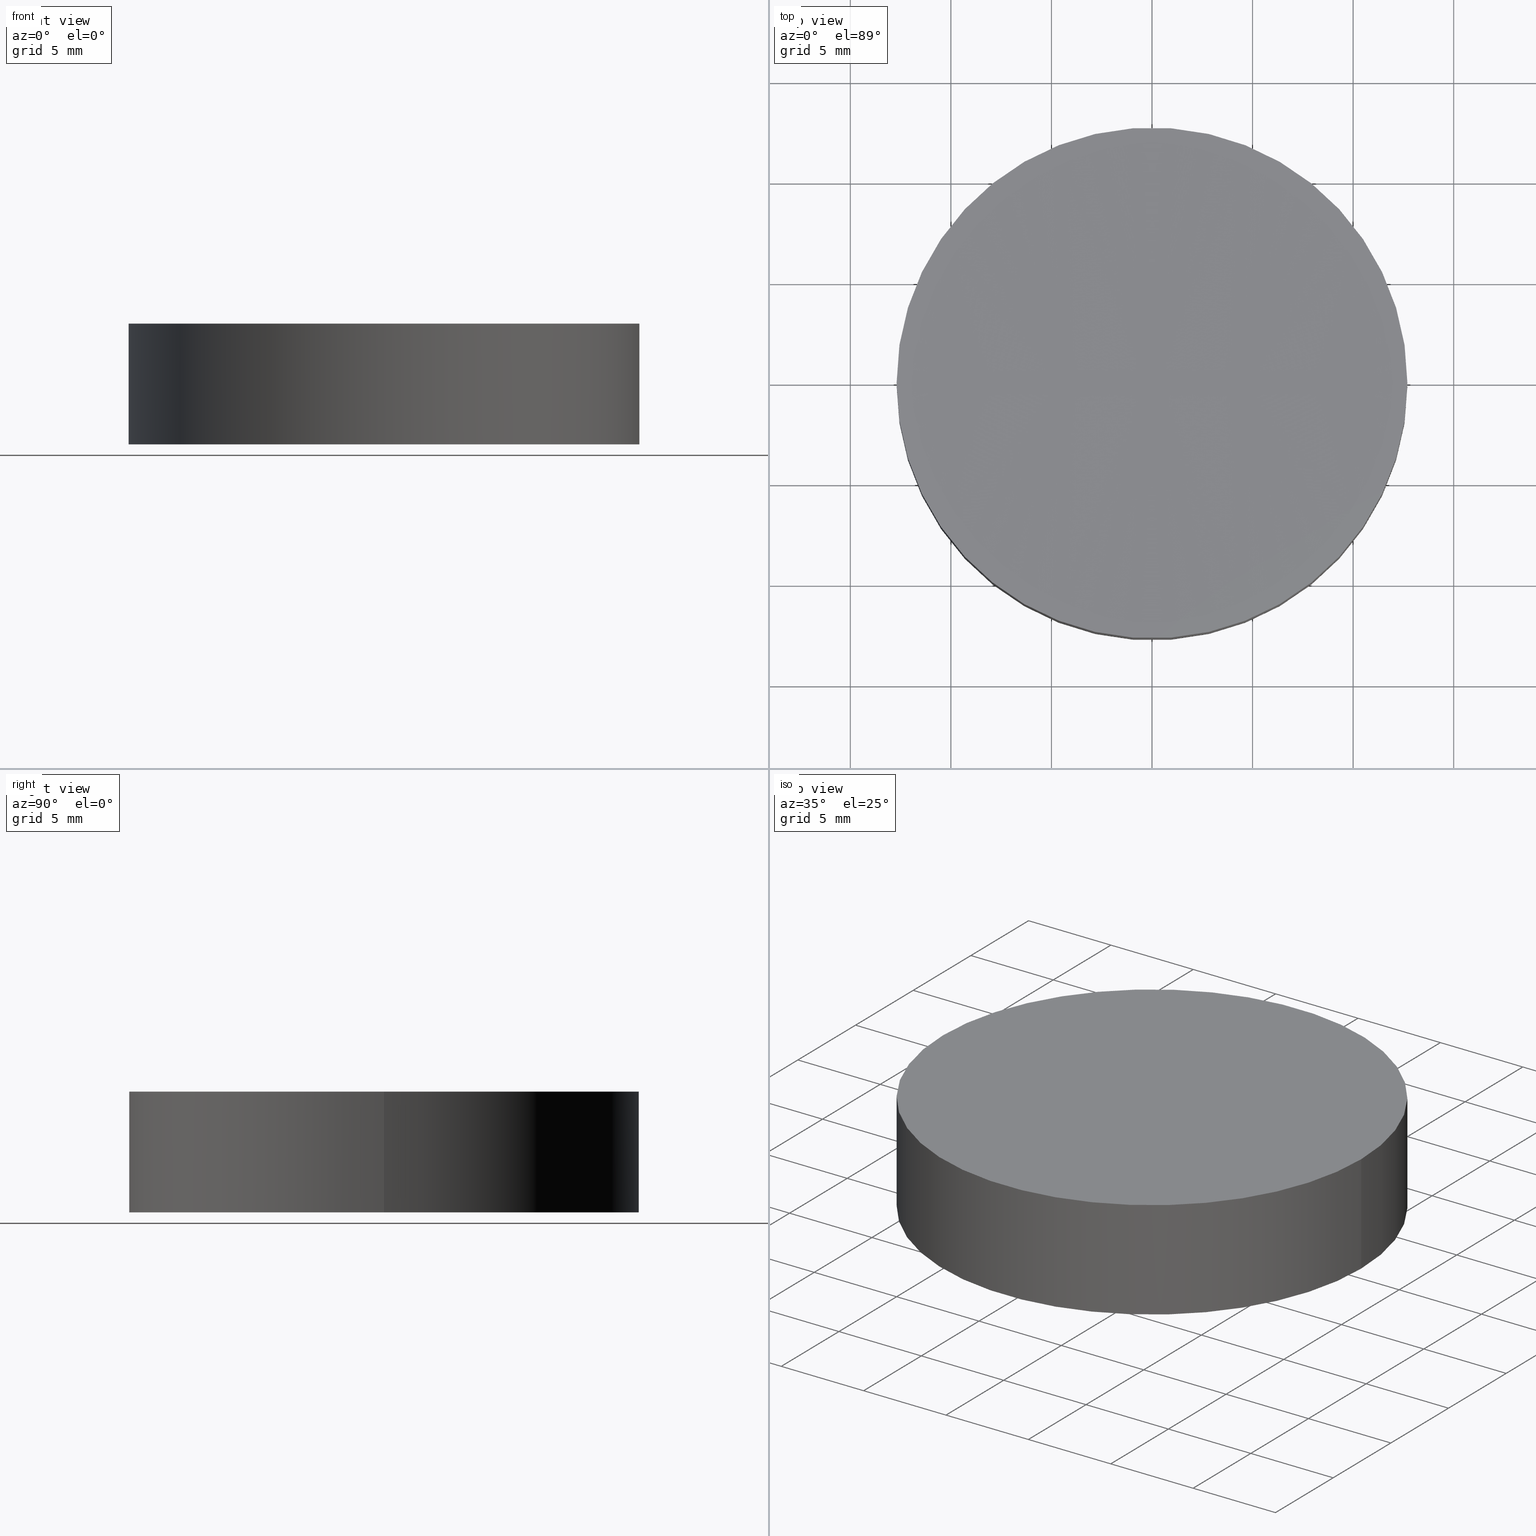
[diagram: canonical four-view strip — front | top / right | iso, engineering-drawing reading convention]
A machine part, canonical four-view strip (front | top / right | iso — engineering-drawing reading convention). The complete STEP part file that produces these views, byte-faithful:
ISO-10303-21;
HEADER;
FILE_DESCRIPTION (( 'STEP AP203' ),
    '1' );
FILE_NAME ('010-0230E_N-BK7_PCV_window.STEP',
    '2021-02-25T11:23:45',
    ( '' ),
    ( '' ),
    'SwSTEP 2.0',
    'SolidWorks 2019',
    '' );
FILE_SCHEMA (( 'CONFIG_CONTROL_DESIGN' ));
ENDSEC;

DATA;
#1 = CARTESIAN_POINT ( 'NONE',  ( -12.69999999990683293, 0.000000000000000000, 6.000000000000227374 ) ) ;
#2 = APPROVAL ( #74, 'UNSPECIFIED' ) ;
#3 = ORIENTED_EDGE ( 'NONE', *, *, #137, .T. ) ;
#4 = CIRCLE ( 'NONE', #120, 12.69999999999999929 ) ;
#5 = ORIENTED_EDGE ( 'NONE', *, *, #24, .F. ) ;
#6 = CC_DESIGN_PERSON_AND_ORGANIZATION_ASSIGNMENT ( #197, #78, ( #61 ) ) ;
#7 = DATE_AND_TIME ( #20, #35 ) ;
#8 = COORDINATED_UNIVERSAL_TIME_OFFSET ( 2, 0, .AHEAD. ) ;
#9 = PERSON_AND_ORGANIZATION ( #156, #180 ) ;
#10 = ORIENTED_EDGE ( 'NONE', *, *, #80, .F. ) ;
#11 = DATE_TIME_ROLE ( 'classification_date' ) ;
#12 = CARTESIAN_POINT ( 'NONE',  ( 0.000000000000000000, 0.000000000000000000, 0.000000000000000000 ) ) ;
#13 = PERSON_AND_ORGANIZATION_ROLE ( 'creator' ) ;
#14 = DIRECTION ( 'NONE',  ( -0.000000000000000000, -0.000000000000000000, -1.000000000000000000 ) ) ;
#15 = CARTESIAN_POINT ( 'NONE',  ( -12.69999999999999929, 0.000000000000000000, 0.000000000000000000 ) ) ;
#16 = DIRECTION ( 'NONE',  ( 0.000000000000000000, 0.000000000000000000, 1.000000000000000000 ) ) ;
#17 = APPLICATION_CONTEXT ( 'configuration controlled 3d designs of mechanical parts and assemblies' ) ;
#18 = ORIENTED_EDGE ( 'NONE', *, *, #119, .F. ) ;
#19 = ADVANCED_FACE ( 'NONE', ( #111 ), #112, .F. ) ;
#20 = CALENDAR_DATE ( 2021, 25, 2 ) ;
#21 = FACE_OUTER_BOUND ( 'NONE', #98, .T. ) ;
#22 = CC_DESIGN_SECURITY_CLASSIFICATION ( #134, ( #61 ) ) ;
#23 = CIRCLE ( 'NONE', #163, 12.69999999999999929 ) ;
#24 = EDGE_CURVE ( 'NONE', #109, #83, #4, .T. ) ;
#25 = DIRECTION ( 'NONE',  ( -1.000000000000000000, 0.000000000000000000, 0.000000000000000000 ) ) ;
#26 = CARTESIAN_POINT ( 'NONE',  ( 0.000000000000000000, 0.000000000000000000, 0.000000000000000000 ) ) ;
#27 = CIRCLE ( 'NONE', #154, 12.69999999990744755 ) ;
#28 = SHAPE_DEFINITION_REPRESENTATION ( #108, #95 ) ;
#29 = DESIGN_CONTEXT ( 'detailed design', #174, 'design' ) ;
#30 = DIRECTION ( 'NONE',  ( 1.000000000000000000, 0.000000000000000000, -0.000000000000000000 ) ) ;
#31 = AXIS2_PLACEMENT_3D ( 'NONE', #127, #164, #147 ) ;
#32 = FACE_OUTER_BOUND ( 'NONE', #49, .T. ) ;
#33 = EDGE_LOOP ( 'NONE', ( #10, #5 ) ) ;
#34 = DIRECTION ( 'NONE',  ( -0.000000000000000000, -0.000000000000000000, -1.000000000000000000 ) ) ;
#35 = LOCAL_TIME ( 13, 23, 45.00000000000000000, #150 ) ;
#36 = ORIENTED_EDGE ( 'NONE', *, *, #192, .T. ) ;
#37 = ORIENTED_EDGE ( 'NONE', *, *, #69, .F. ) ;
#38 = CLOSED_SHELL ( 'NONE', ( #19, #183, #115, #172, #185 ) ) ;
#39 = APPROVAL_DATE_TIME ( #191, #2 ) ;
#40 = APPROVAL_ROLE ( '' ) ;
#41 = CC_DESIGN_PERSON_AND_ORGANIZATION_ASSIGNMENT ( #190, #104, ( #45 ) ) ;
#42 = AXIS2_PLACEMENT_3D ( 'NONE', #94, #34, #143 ) ;
#43 = CARTESIAN_POINT ( 'NONE',  ( 12.69999999999999929, 1.555301434917138433E-15, 6.000000000000000000 ) ) ;
#44 = APPROVAL_ROLE ( '' ) ;
#45 = PRODUCT ( '010-0230E_N-BK7_PCV_window', '010-0230E_N-BK7_PCV_window', '', ( #118 ) ) ;
#46 = ORIENTED_EDGE ( 'NONE', *, *, #86, .F. ) ;
#47 = DIRECTION ( 'NONE',  ( 1.000000000000000000, 1.224646799147353207E-16, 0.000000000000000000 ) ) ;
#48 = AXIS2_PLACEMENT_3D ( 'NONE', #188, #57, #25 ) ;
#49 = EDGE_LOOP ( 'NONE', ( #179, #79, #169, #131 ) ) ;
#50 = ORIENTED_EDGE ( 'NONE', *, *, #24, .T. ) ;
#51 = DIRECTION ( 'NONE',  ( -0.000000000000000000, -0.000000000000000000, -1.000000000000000000 ) ) ;
#52 = ORIENTED_EDGE ( 'NONE', *, *, #86, .T. ) ;
#53 = CC_DESIGN_APPROVAL ( #2, ( #155 ) ) ;
#54 = DIRECTION ( 'NONE',  ( -0.000000000000000000, -0.000000000000000000, -1.000000000000000000 ) ) ;
#55 = CC_DESIGN_PERSON_AND_ORGANIZATION_ASSIGNMENT ( #195, #13, ( #61 ) ) ;
#56 = DIRECTION ( 'NONE',  ( 0.000000000000000000, 0.000000000000000000, 1.000000000000000000 ) ) ;
#57 = DIRECTION ( 'NONE',  ( -0.000000000000000000, -0.000000000000000000, -1.000000000000000000 ) ) ;
#58 = AXIS2_PLACEMENT_3D ( 'NONE', #125, #177, #30 ) ;
#59 = SPHERICAL_SURFACE ( 'NONE', #194, 5000.000000000000000 ) ;
#60 = PERSON_AND_ORGANIZATION_ROLE ( 'classification_officer' ) ;
#61 = PRODUCT_DEFINITION_FORMATION_WITH_SPECIFIED_SOURCE ( 'ANY', '', #45, .NOT_KNOWN. ) ;
#62 = CYLINDRICAL_SURFACE ( 'NONE', #42, 12.69999999999999929 ) ;
#63 = UNCERTAINTY_MEASURE_WITH_UNIT (LENGTH_MEASURE( 1.000000000000000082E-05 ), #160, 'distance_accuracy_value', 'NONE');
#64 = FACE_OUTER_BOUND ( 'NONE', #33, .T. ) ;
#65 = LOCAL_TIME ( 13, 23, 45.00000000000000000, #175 ) ;
#66 = DIRECTION ( 'NONE',  ( 1.000000000000000000, 0.000000000000000000, 0.000000000000000000 ) ) ;
#67 = DIRECTION ( 'NONE',  ( 0.000000000000000000, 0.000000000000000000, 1.000000000000000000 ) ) ;
#68 = EDGE_LOOP ( 'NONE', ( #133, #52, #37 ) ) ;
#69 = EDGE_CURVE ( 'NONE', #141, #129, #173, .T. ) ;
#70 = DATE_TIME_ROLE ( 'creation_date' ) ;
#71 = APPLICATION_PROTOCOL_DEFINITION ( 'international standard', 'config_control_design', 1994, #17 ) ;
#72 = DIRECTION ( 'NONE',  ( 1.000000000000000000, 0.000000000000000000, 0.000000000000000000 ) ) ;
#73 =( GEOMETRIC_REPRESENTATION_CONTEXT ( 3 ) GLOBAL_UNCERTAINTY_ASSIGNED_CONTEXT ( ( #63 ) ) GLOBAL_UNIT_ASSIGNED_CONTEXT ( ( #160, #103, #89 ) ) REPRESENTATION_CONTEXT ( 'NONE', 'WORKASPACE' ) );
#74 = APPROVAL_STATUS ( 'not_yet_approved' ) ;
#75 = CC_DESIGN_PERSON_AND_ORGANIZATION_ASSIGNMENT ( #100, #157, ( #155 ) ) ;
#76 = PLANE ( 'NONE',  #58 ) ;
#77 = DIRECTION ( 'NONE',  ( 0.000000000000000000, 1.000000000000000000, -0.000000000000000000 ) ) ;
#78 = PERSON_AND_ORGANIZATION_ROLE ( 'design_supplier' ) ;
#79 = ORIENTED_EDGE ( 'NONE', *, *, #114, .T. ) ;
#80 = EDGE_CURVE ( 'NONE', #83, #109, #23, .T. ) ;
#81 = APPROVAL_PERSON_ORGANIZATION ( #140, #122, #44 ) ;
#82 = CARTESIAN_POINT ( 'NONE',  ( 6.140921104957897114E-13, 0.000000000000000000, 5005.983870973986086 ) ) ;
#83 = VERTEX_POINT ( 'NONE', #15 ) ;
#84 = VECTOR ( 'NONE', #54, 1000.000000000000000 ) ;
#85 = MANIFOLD_SOLID_BREP ( 'Cut-Revolve1', #38 ) ;
#86 = EDGE_CURVE ( 'NONE', #116, #129, #132, .T. ) ;
#87 = LOCAL_TIME ( 13, 23, 45.00000000000000000, #158 ) ;
#88 = LINE ( 'NONE', #43, #84 ) ;
#89 =( NAMED_UNIT ( * ) SI_UNIT ( $, .STERADIAN. ) SOLID_ANGLE_UNIT ( ) );
#90 = CC_DESIGN_APPROVAL ( #130, ( #61 ) ) ;
#91 = CC_DESIGN_DATE_AND_TIME_ASSIGNMENT ( #178, #11, ( #134 ) ) ;
#92 = FACE_OUTER_BOUND ( 'NONE', #184, .T. ) ;
#93 = CIRCLE ( 'NONE', #31, 12.69999999990744755 ) ;
#94 = CARTESIAN_POINT ( 'NONE',  ( 0.000000000000000000, 0.000000000000000000, 6.000000000000000000 ) ) ;
#95 = ADVANCED_BREP_SHAPE_REPRESENTATION ( '010-0230E_N-BK7_PCV_window', ( #85, #117 ), #73 ) ;
#96 = ORIENTED_EDGE ( 'NONE', *, *, #114, .F. ) ;
#97 = CARTESIAN_POINT ( 'NONE',  ( 12.69999999990806039, 1.555301434911509121E-15, 6.000000000000227374 ) ) ;
#98 = EDGE_LOOP ( 'NONE', ( #46, #96, #149 ) ) ;
#99 = CC_DESIGN_PERSON_AND_ORGANIZATION_ASSIGNMENT ( #126, #60, ( #134 ) ) ;
#100 = PERSON_AND_ORGANIZATION ( #156, #180 ) ;
#101 = CALENDAR_DATE ( 2021, 25, 2 ) ;
#102 = AXIS2_PLACEMENT_3D ( 'NONE', #181, #77, #16 ) ;
#103 =( NAMED_UNIT ( * ) PLANE_ANGLE_UNIT ( ) SI_UNIT ( $, .RADIAN. ) );
#104 = PERSON_AND_ORGANIZATION_ROLE ( 'design_owner' ) ;
#105 = COORDINATED_UNIVERSAL_TIME_OFFSET ( 2, 0, .AHEAD. ) ;
#106 = PRODUCT_RELATED_PRODUCT_CATEGORY ( 'detail', '', ( #45 ) ) ;
#107 = APPROVAL_DATE_TIME ( #176, #122 ) ;
#108 = PRODUCT_DEFINITION_SHAPE ( 'NONE', 'NONE',  #155 ) ;
#109 = VERTEX_POINT ( 'NONE', #166 ) ;
#110 = DIRECTION ( 'NONE',  ( 1.000000000000000000, 0.000000000000000000, 0.000000000000000000 ) ) ;
#111 = FACE_OUTER_BOUND ( 'NONE', #68, .T. ) ;
#112 = SPHERICAL_SURFACE ( 'NONE', #148, 5000.000000000000000 ) ;
#113 = DIRECTION ( 'NONE',  ( 1.000000000000000000, 0.000000000000000000, 0.000000000000000000 ) ) ;
#114 = EDGE_CURVE ( 'NONE', #141, #116, #93, .T. ) ;
#115 = ADVANCED_FACE ( 'NONE', ( #32 ), #62, .T. ) ;
#116 = VERTEX_POINT ( 'NONE', #1 ) ;
#117 = AXIS2_PLACEMENT_3D ( 'NONE', #26, #56, #152 ) ;
#118 = MECHANICAL_CONTEXT ( 'NONE', #17, 'mechanical' ) ;
#119 = EDGE_CURVE ( 'NONE', #116, #83, #182, .T. ) ;
#120 = AXIS2_PLACEMENT_3D ( 'NONE', #12, #67, #66 ) ;
#121 = CARTESIAN_POINT ( 'NONE',  ( 6.140921104957897114E-13, 0.000000000000000000, 5005.983870973986086 ) ) ;
#122 = APPROVAL ( #124, 'UNSPECIFIED' ) ;
#123 = SECURITY_CLASSIFICATION_LEVEL ( 'unclassified' ) ;
#124 = APPROVAL_STATUS ( 'not_yet_approved' ) ;
#125 = CARTESIAN_POINT ( 'NONE',  ( 0.000000000000000000, 0.000000000000000000, 0.000000000000000000 ) ) ;
#126 = PERSON_AND_ORGANIZATION ( #156, #180 ) ;
#127 = CARTESIAN_POINT ( 'NONE',  ( 6.140921104957897114E-13, 0.000000000000000000, 6.000000000000227374 ) ) ;
#128 = DIRECTION ( 'NONE',  ( 1.000000000000000000, 0.000000000000000000, 0.000000000000000000 ) ) ;
#129 = VERTEX_POINT ( 'NONE', #199 ) ;
#130 = APPROVAL ( #186, 'UNSPECIFIED' ) ;
#131 = ORIENTED_EDGE ( 'NONE', *, *, #80, .T. ) ;
#132 = CIRCLE ( 'NONE', #138, 5000.000000000000000 ) ;
#133 = ORIENTED_EDGE ( 'NONE', *, *, #137, .F. ) ;
#134 = SECURITY_CLASSIFICATION ( '', '', #123 ) ;
#135 = PERSON_AND_ORGANIZATION ( #156, #180 ) ;
#136 = DATE_AND_TIME ( #101, #87 ) ;
#137 = EDGE_CURVE ( 'NONE', #116, #141, #27, .T. ) ;
#138 = AXIS2_PLACEMENT_3D ( 'NONE', #82, #201, #47 ) ;
#139 = CALENDAR_DATE ( 2021, 25, 2 ) ;
#140 = PERSON_AND_ORGANIZATION ( #156, #180 ) ;
#141 = VERTEX_POINT ( 'NONE', #97 ) ;
#142 = CARTESIAN_POINT ( 'NONE',  ( 6.140921104957897114E-13, 0.000000000000000000, 6.000000000000227374 ) ) ;
#143 = DIRECTION ( 'NONE',  ( -1.000000000000000000, 0.000000000000000000, 0.000000000000000000 ) ) ;
#144 = CARTESIAN_POINT ( 'NONE',  ( 6.140921104957897114E-13, 0.000000000000000000, 5005.983870973986086 ) ) ;
#145 = LOCAL_TIME ( 13, 23, 45.00000000000000000, #8 ) ;
#146 = CC_DESIGN_DATE_AND_TIME_ASSIGNMENT ( #7, #70, ( #155 ) ) ;
#147 = DIRECTION ( 'NONE',  ( 1.000000000000000000, 0.000000000000000000, 0.000000000000000000 ) ) ;
#148 = AXIS2_PLACEMENT_3D ( 'NONE', #144, #165, #128 ) ;
#149 = ORIENTED_EDGE ( 'NONE', *, *, #69, .T. ) ;
#150 = COORDINATED_UNIVERSAL_TIME_OFFSET ( 2, 0, .AHEAD. ) ;
#151 = APPROVAL_ROLE ( '' ) ;
#152 = DIRECTION ( 'NONE',  ( 1.000000000000000000, 0.000000000000000000, 0.000000000000000000 ) ) ;
#153 = LOCAL_TIME ( 13, 23, 45.00000000000000000, #105 ) ;
#154 = AXIS2_PLACEMENT_3D ( 'NONE', #142, #51, #113 ) ;
#155 = PRODUCT_DEFINITION ( 'UNKNOWN', '', #61, #29 ) ;
#156 = PERSON ( 'UNSPECIFIED', 'UNSPECIFIED', 'UNSPECIFIED', ('UNSPECIFIED'), ('UNSPECIFIED'), ('UNSPECIFIED') ) ;
#157 = PERSON_AND_ORGANIZATION_ROLE ( 'creator' ) ;
#158 = COORDINATED_UNIVERSAL_TIME_OFFSET ( 2, 0, .AHEAD. ) ;
#159 = APPLICATION_PROTOCOL_DEFINITION ( 'international standard', 'config_control_design', 1994, #174 ) ;
#160 =( LENGTH_UNIT ( ) NAMED_UNIT ( * ) SI_UNIT ( .MILLI., .METRE. ) );
#161 = CALENDAR_DATE ( 2021, 25, 2 ) ;
#162 = DIRECTION ( 'NONE',  ( 0.000000000000000000, 0.000000000000000000, 1.000000000000000000 ) ) ;
#163 = AXIS2_PLACEMENT_3D ( 'NONE', #196, #162, #110 ) ;
#164 = DIRECTION ( 'NONE',  ( -0.000000000000000000, -0.000000000000000000, -1.000000000000000000 ) ) ;
#165 = DIRECTION ( 'NONE',  ( 0.000000000000000000, -1.000000000000000000, -0.000000000000000000 ) ) ;
#166 = CARTESIAN_POINT ( 'NONE',  ( 12.69999999999999929, 1.555301434917138433E-15, 0.000000000000000000 ) ) ;
#167 = CARTESIAN_POINT ( 'NONE',  ( -12.69999999999999929, 0.000000000000000000, 6.000000000000000000 ) ) ;
#168 = APPROVAL_PERSON_ORGANIZATION ( #135, #130, #40 ) ;
#169 = ORIENTED_EDGE ( 'NONE', *, *, #119, .T. ) ;
#170 = CC_DESIGN_APPROVAL ( #122, ( #134 ) ) ;
#171 = DIRECTION ( 'NONE',  ( 0.000000000000000000, -1.000000000000000000, -0.000000000000000000 ) ) ;
#172 = ADVANCED_FACE ( 'NONE', ( #64 ), #76, .F. ) ;
#173 = CIRCLE ( 'NONE', #102, 4999.999999999999091 ) ;
#174 = APPLICATION_CONTEXT ( 'configuration controlled 3d designs of mechanical parts and assemblies' ) ;
#175 = COORDINATED_UNIVERSAL_TIME_OFFSET ( 2, 0, .AHEAD. ) ;
#176 = DATE_AND_TIME ( #161, #153 ) ;
#177 = DIRECTION ( 'NONE',  ( 0.000000000000000000, 0.000000000000000000, 1.000000000000000000 ) ) ;
#178 = DATE_AND_TIME ( #193, #65 ) ;
#179 = ORIENTED_EDGE ( 'NONE', *, *, #192, .F. ) ;
#180 = ORGANIZATION ( 'UNSPECIFIED', 'UNSPECIFIED', '' ) ;
#181 = CARTESIAN_POINT ( 'NONE',  ( 6.140921104957897114E-13, 0.000000000000000000, 5005.983870973986086 ) ) ;
#182 = LINE ( 'NONE', #167, #189 ) ;
#183 = ADVANCED_FACE ( 'NONE', ( #92 ), #198, .T. ) ;
#184 = EDGE_LOOP ( 'NONE', ( #3, #36, #50, #18 ) ) ;
#185 = ADVANCED_FACE ( 'NONE', ( #21 ), #59, .F. ) ;
#186 = APPROVAL_STATUS ( 'not_yet_approved' ) ;
#187 = APPROVAL_DATE_TIME ( #136, #130 ) ;
#188 = CARTESIAN_POINT ( 'NONE',  ( 0.000000000000000000, 0.000000000000000000, 6.000000000000000000 ) ) ;
#189 = VECTOR ( 'NONE', #14, 1000.000000000000000 ) ;
#190 = PERSON_AND_ORGANIZATION ( #156, #180 ) ;
#191 = DATE_AND_TIME ( #139, #145 ) ;
#192 = EDGE_CURVE ( 'NONE', #141, #109, #88, .T. ) ;
#193 = CALENDAR_DATE ( 2021, 25, 2 ) ;
#194 = AXIS2_PLACEMENT_3D ( 'NONE', #121, #171, #72 ) ;
#195 = PERSON_AND_ORGANIZATION ( #156, #180 ) ;
#196 = CARTESIAN_POINT ( 'NONE',  ( 0.000000000000000000, 0.000000000000000000, 0.000000000000000000 ) ) ;
#197 = PERSON_AND_ORGANIZATION ( #156, #180 ) ;
#198 = CYLINDRICAL_SURFACE ( 'NONE', #48, 12.69999999999999929 ) ;
#199 = CARTESIAN_POINT ( 'NONE',  ( 9.202538102826278847E-13, 0.000000000000000000, 5.983870973985894182 ) ) ;
#200 = APPROVAL_PERSON_ORGANIZATION ( #9, #2, #151 ) ;
#201 = DIRECTION ( 'NONE',  ( 1.224646799147353207E-16, -1.000000000000000000, 0.000000000000000000 ) ) ;
ENDSEC;
END-ISO-10303-21;
